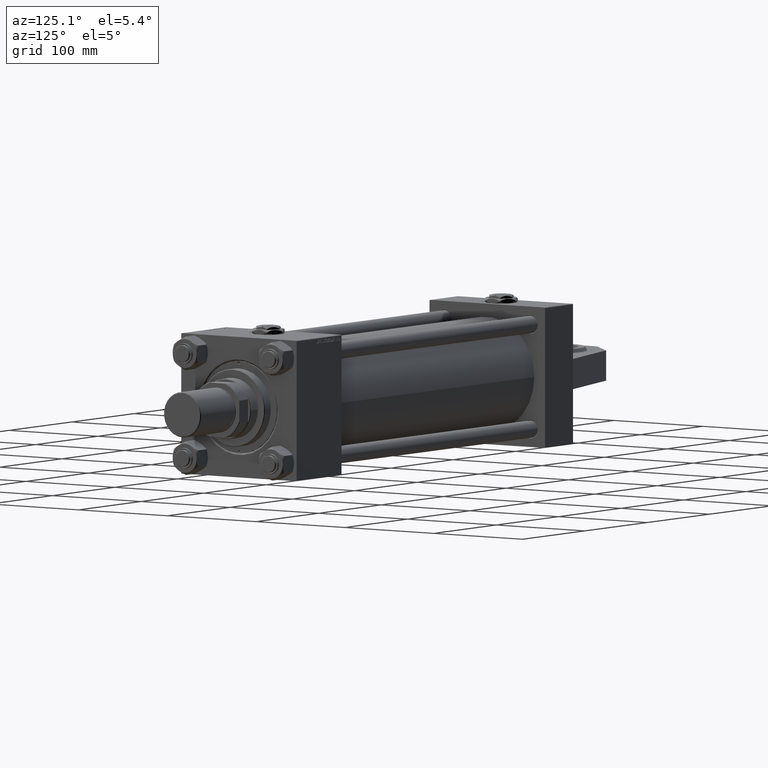
[diagram: clean part render]
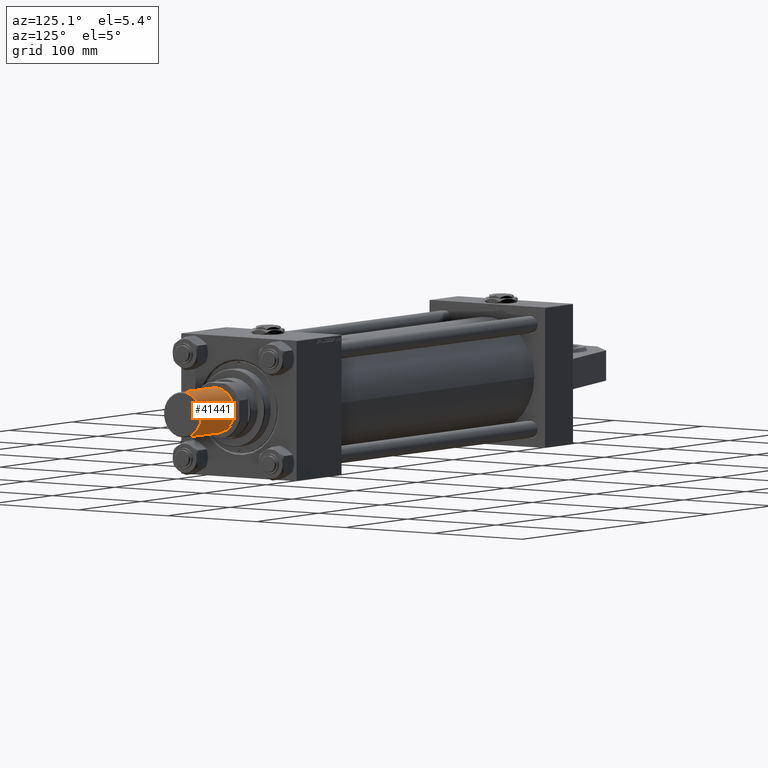
[diagram: same view with one face highlighted and labeled with its STEP entity id]
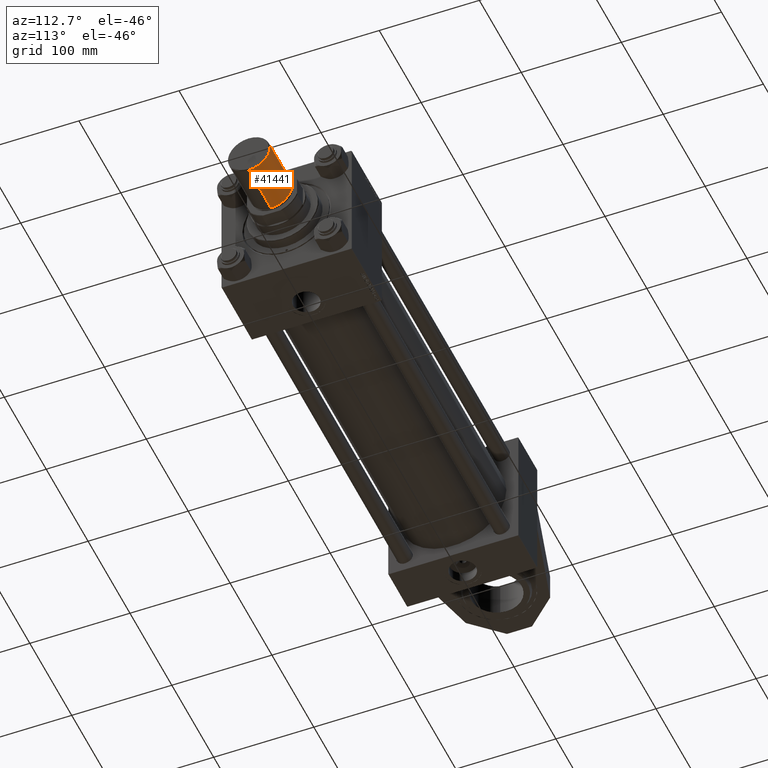
[diagram: same view with one face highlighted and labeled with its STEP entity id]
A machine part, auxiliary view. The second image highlights one B-rep face of the part: STEP entity #41441.
A second angle (auxiliary view) of the same face is appended — the face is thin or edge-on in the first view.
In plain terms, the highlighted cylindrical surface (edge-blend (fillet) strip) has radius 21 mm, axis along (1, -0, -0).
Its self-contained STEP definition (entity closure, byte-faithful):
#2785 = CARTESIAN_POINT ( 'NONE',  ( 21.00000000000000000, 2.571758278209441661E-15, 53.50000000000000000 ) ) ;
#2831 = DIRECTION ( 'NONE',  ( 1.000000000000000000, 0.000000000000000000, 0.000000000000000000 ) ) ;
#2918 = CARTESIAN_POINT ( 'NONE',  ( 0.000000000000000000, 0.000000000000000000, 53.50000000000000000 ) ) ;
#4461 = VECTOR ( 'NONE', #40435, 1000.000000000000000 ) ;
#6317 = VERTEX_POINT ( 'NONE', #20576 ) ;
#6672 = DIRECTION ( 'NONE',  ( -1.000000000000000000, 0.000000000000000000, 0.000000000000000000 ) ) ;
#9510 = VERTEX_POINT ( 'NONE', #26182 ) ;
#10698 = CYLINDRICAL_SURFACE ( 'NONE', #23281, 21.00000000000000000 ) ;
#10954 = FACE_OUTER_BOUND ( 'NONE', #33211, .T. ) ;
#11700 = ORIENTED_EDGE ( 'NONE', *, *, #51927, .T. ) ;
#12232 = LINE ( 'NONE', #18506, #49367 ) ;
#13596 = DIRECTION ( 'NONE',  ( 0.000000000000000000, 0.000000000000000000, 1.000000000000000000 ) ) ;
#14119 = CIRCLE ( 'NONE', #34725, 21.00000000000000000 ) ;
#18506 = CARTESIAN_POINT ( 'NONE',  ( -21.00000000000000000, 0.000000000000000000, 53.50000000000000000 ) ) ;
#20576 = CARTESIAN_POINT ( 'NONE',  ( 21.00000000000000000, 2.571758278209441661E-15, 53.50000000000000000 ) ) ;
#22140 = ORIENTED_EDGE ( 'NONE', *, *, #48840, .F. ) ;
#23281 = AXIS2_PLACEMENT_3D ( 'NONE', #2918, #27096, #6672 ) ;
#24922 = DIRECTION ( 'NONE',  ( 1.000000000000000000, 0.000000000000000000, 0.000000000000000000 ) ) ;
#26182 = CARTESIAN_POINT ( 'NONE',  ( 21.00000000000000000, 2.571758278209441661E-15, 0.7999999999999882760 ) ) ;
#27096 = DIRECTION ( 'NONE',  ( -0.000000000000000000, -0.000000000000000000, -1.000000000000000000 ) ) ;
#27152 = ORIENTED_EDGE ( 'NONE', *, *, #42270, .T. ) ;
#27513 = LINE ( 'NONE', #2785, #4461 ) ;
#27554 = DIRECTION ( 'NONE',  ( -0.000000000000000000, -0.000000000000000000, 1.000000000000000000 ) ) ;
#27821 = CARTESIAN_POINT ( 'NONE',  ( 0.000000000000000000, 0.000000000000000000, 0.7999999999999882760 ) ) ;
#29231 = CARTESIAN_POINT ( 'NONE',  ( 0.000000000000000000, 0.000000000000000000, 53.50000000000000000 ) ) ;
#33211 = EDGE_LOOP ( 'NONE', ( #22140, #27152, #11700, #43531 ) ) ;
#33793 = CIRCLE ( 'NONE', #49267, 21.00000000000000000 ) ;
#34725 = AXIS2_PLACEMENT_3D ( 'NONE', #27821, #27554, #2831 ) ;
#40435 = DIRECTION ( 'NONE',  ( -0.000000000000000000, -0.000000000000000000, -1.000000000000000000 ) ) ;
#41441 = ADVANCED_FACE ( 'NONE', ( #10954 ), #10698, .T. ) ;
#42270 = EDGE_CURVE ( 'NONE', #6317, #9510, #27513, .T. ) ;
#43531 = ORIENTED_EDGE ( 'NONE', *, *, #52425, .F. ) ;
#46104 = CARTESIAN_POINT ( 'NONE',  ( -21.00000000000000000, 0.000000000000000000, 53.50000000000000000 ) ) ;
#46297 = VERTEX_POINT ( 'NONE', #46104 ) ;
#48840 = EDGE_CURVE ( 'NONE', #6317, #46297, #33793, .T. ) ;
#49199 = CARTESIAN_POINT ( 'NONE',  ( -21.00000000000000000, 0.000000000000000000, 0.7999999999999882760 ) ) ;
#49267 = AXIS2_PLACEMENT_3D ( 'NONE', #29231, #13596, #24922 ) ;
#49367 = VECTOR ( 'NONE', #52860, 1000.000000000000000 ) ;
#51343 = VERTEX_POINT ( 'NONE', #49199 ) ;
#51927 = EDGE_CURVE ( 'NONE', #9510, #51343, #14119, .T. ) ;
#52425 = EDGE_CURVE ( 'NONE', #46297, #51343, #12232, .T. ) ;
#52860 = DIRECTION ( 'NONE',  ( -0.000000000000000000, -0.000000000000000000, -1.000000000000000000 ) ) ;